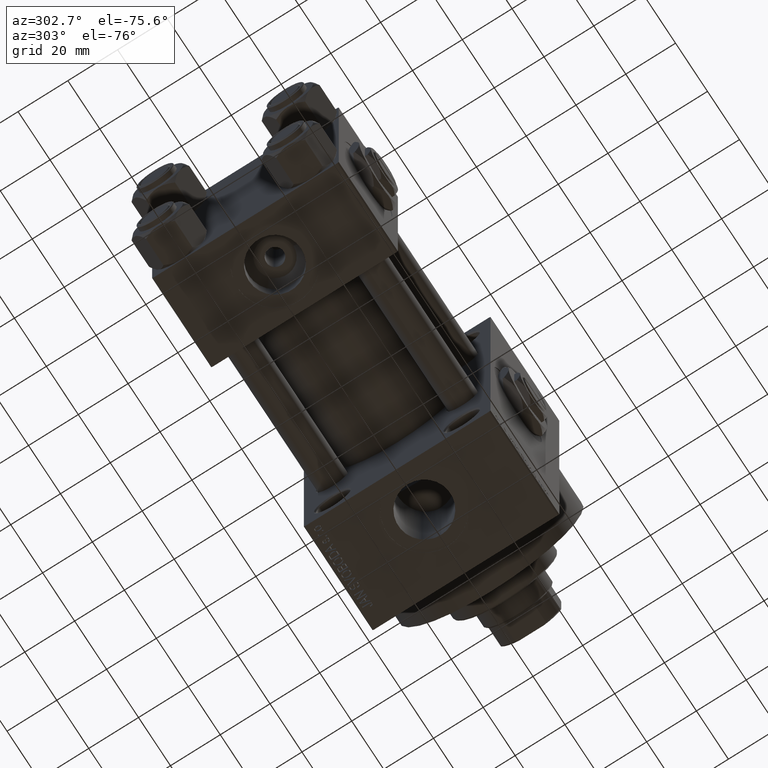
[diagram: clean part render]
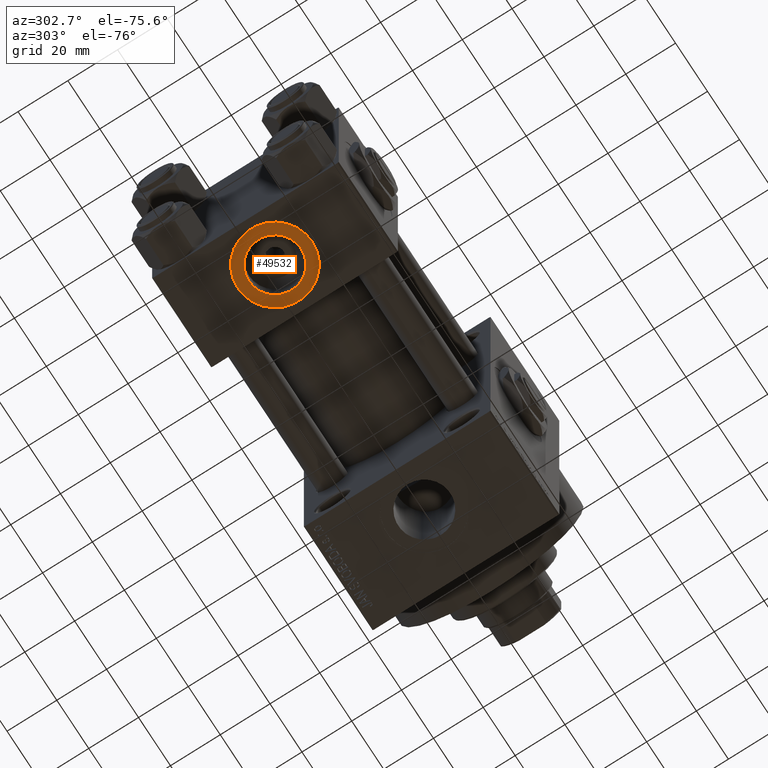
[diagram: same view with one face highlighted and labeled with its STEP entity id]
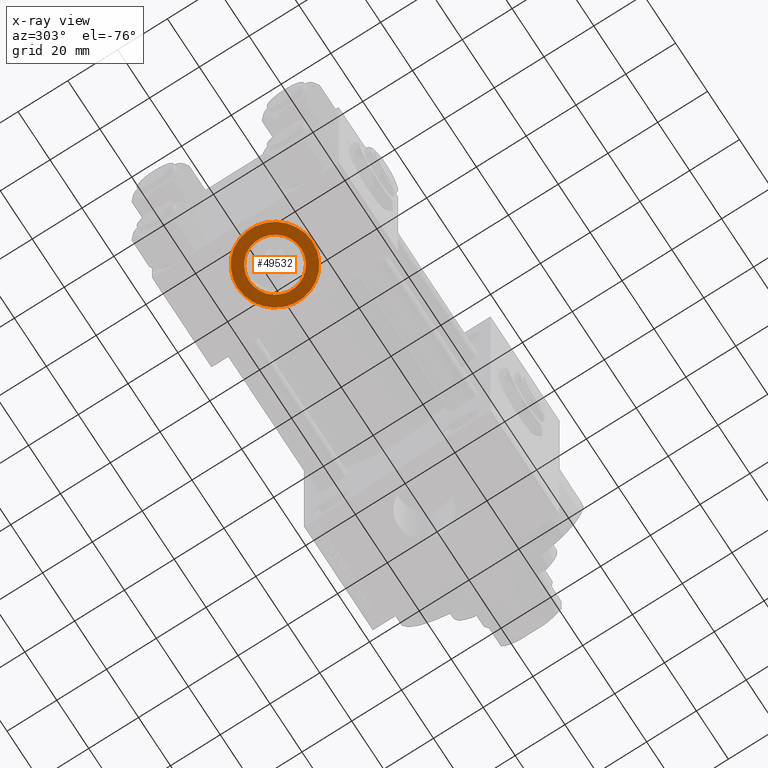
[diagram: x-ray of the same camera — body ghosted, the highlighted face saturated]
A machine part, auxiliary view. The second image highlights one B-rep face of the part: STEP entity #49532.
The next image is the same camera in x-ray: the body ghosted, the highlighted face saturated — about 0% of this face is hidden behind the body in this view.
In plain terms, the highlighted planar face has unit normal (0, -0, -1).
Its self-contained STEP definition (entity closure, byte-faithful):
#620 = ORIENTED_EDGE ( 'NONE', *, *, #1546, .F. ) ;
#1008 = CIRCLE ( 'NONE', #42566, 10.48000000000000043 ) ;
#1546 = EDGE_CURVE ( 'NONE', #8399, #31871, #45578, .T. ) ;
#2934 = VERTEX_POINT ( 'NONE', #31877 ) ;
#3516 = DIRECTION ( 'NONE',  ( 0.000000000000000000, 1.000000000000000000, -1.734723475976806848E-16 ) ) ;
#3986 = AXIS2_PLACEMENT_3D ( 'NONE', #26512, #41302, #3516 ) ;
#5856 = ORIENTED_EDGE ( 'NONE', *, *, #46301, .T. ) ;
#6265 = AXIS2_PLACEMENT_3D ( 'NONE', #24424, #13428, #16940 ) ;
#8399 = VERTEX_POINT ( 'NONE', #32487 ) ;
#11604 = CARTESIAN_POINT ( 'NONE',  ( 18.50000000000001066, -15.00000000000000000, -37.30000000000000426 ) ) ;
#13282 = EDGE_LOOP ( 'NONE', ( #620, #15841 ) ) ;
#13428 = DIRECTION ( 'NONE',  ( 0.000000000000000000, -1.734723475976806848E-16, -1.000000000000000000 ) ) ;
#15841 = ORIENTED_EDGE ( 'NONE', *, *, #44963, .F. ) ;
#16940 = DIRECTION ( 'NONE',  ( 0.000000000000000000, 1.000000000000000000, 0.000000000000000000 ) ) ;
#17239 = DIRECTION ( 'NONE',  ( 0.000000000000000000, -1.734723475976806848E-16, -1.000000000000000000 ) ) ;
#18755 = FACE_OUTER_BOUND ( 'NONE', #30203, .T. ) ;
#19992 = VERTEX_POINT ( 'NONE', #11604 ) ;
#20485 = CARTESIAN_POINT ( 'NONE',  ( 18.50000000000000711, 5.649891035195030279E-16, -37.30000000000000426 ) ) ;
#23981 = AXIS2_PLACEMENT_3D ( 'NONE', #20485, #17239, #32483 ) ;
#24204 = CARTESIAN_POINT ( 'NONE',  ( 18.50000000000000711, 5.649891035195026335E-16, -37.30000000000000426 ) ) ;
#24325 = CIRCLE ( 'NONE', #46694, 15.00000000000000000 ) ;
#24424 = CARTESIAN_POINT ( 'NONE',  ( 18.50000000000000711, 5.649891035195026335E-16, -37.30000000000000426 ) ) ;
#26021 = PLANE ( 'NONE',  #3986 ) ;
#26512 = CARTESIAN_POINT ( 'NONE',  ( 18.50000000000000711, 5.649891035195026335E-16, -37.30000000000000426 ) ) ;
#27803 = CIRCLE ( 'NONE', #6265, 15.00000000000000000 ) ;
#28953 = DIRECTION ( 'NONE',  ( 0.000000000000000000, -1.734723475976806848E-16, -1.000000000000000000 ) ) ;
#29769 = DIRECTION ( 'NONE',  ( 0.000000000000000000, -1.734723475976806848E-16, -1.000000000000000000 ) ) ;
#30203 = EDGE_LOOP ( 'NONE', ( #5856, #47814 ) ) ;
#30268 = FACE_BOUND ( 'NONE', #13282, .T. ) ;
#31850 = EDGE_CURVE ( 'NONE', #19992, #2934, #27803, .T. ) ;
#31871 = VERTEX_POINT ( 'NONE', #43954 ) ;
#31877 = CARTESIAN_POINT ( 'NONE',  ( 18.50000000000000711, 15.00000000000000000, -37.30000000000000426 ) ) ;
#32483 = DIRECTION ( 'NONE',  ( 0.000000000000000000, 1.000000000000000000, 0.000000000000000000 ) ) ;
#32487 = CARTESIAN_POINT ( 'NONE',  ( 18.50000000000000711, 10.48000000000000043, -37.30000000000000426 ) ) ;
#34009 = DIRECTION ( 'NONE',  ( 0.000000000000000000, 1.000000000000000000, 0.000000000000000000 ) ) ;
#34255 = CARTESIAN_POINT ( 'NONE',  ( 18.50000000000000711, 5.649891035195030279E-16, -37.30000000000000426 ) ) ;
#41302 = DIRECTION ( 'NONE',  ( 0.000000000000000000, -1.734723475976806848E-16, -1.000000000000000000 ) ) ;
#42566 = AXIS2_PLACEMENT_3D ( 'NONE', #34255, #29769, #34009 ) ;
#43954 = CARTESIAN_POINT ( 'NONE',  ( 18.50000000000000711, -10.48000000000000043, -37.30000000000000426 ) ) ;
#44963 = EDGE_CURVE ( 'NONE', #31871, #8399, #1008, .T. ) ;
#45578 = CIRCLE ( 'NONE', #23981, 10.48000000000000043 ) ;
#46301 = EDGE_CURVE ( 'NONE', #2934, #19992, #24325, .T. ) ;
#46694 = AXIS2_PLACEMENT_3D ( 'NONE', #24204, #28953, #46994 ) ;
#46994 = DIRECTION ( 'NONE',  ( 0.000000000000000000, 1.000000000000000000, 0.000000000000000000 ) ) ;
#47814 = ORIENTED_EDGE ( 'NONE', *, *, #31850, .T. ) ;
#49532 = ADVANCED_FACE ( 'NONE', ( #30268, #18755 ), #26021, .T. ) ;